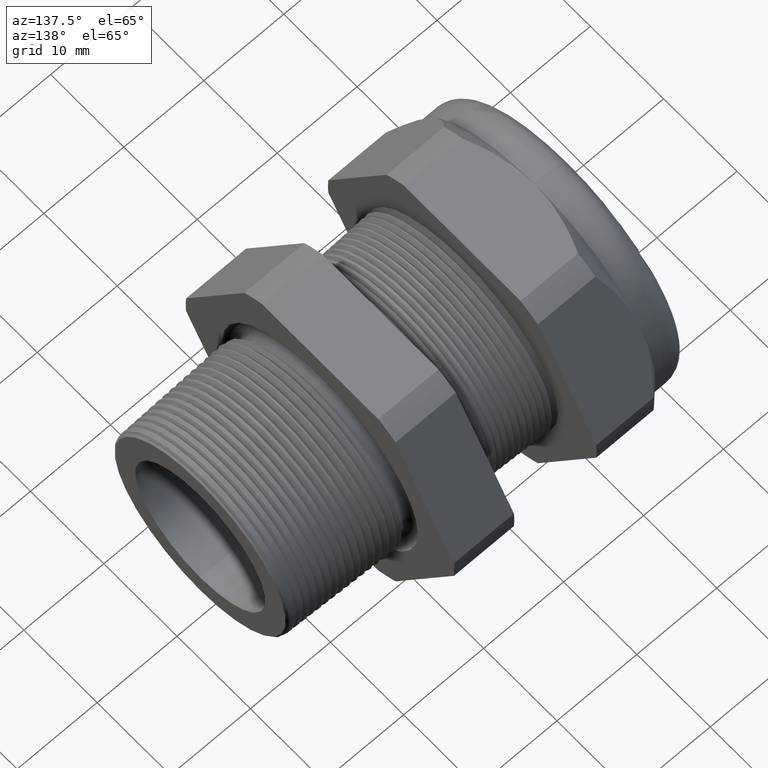
[diagram: clean part render]
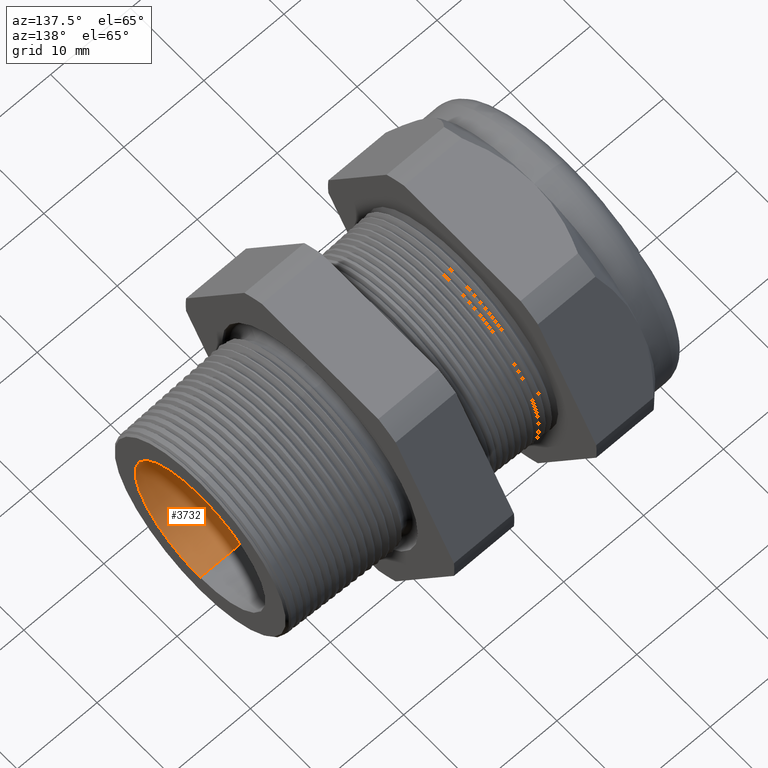
[diagram: same view with one face highlighted and labeled with its STEP entity id]
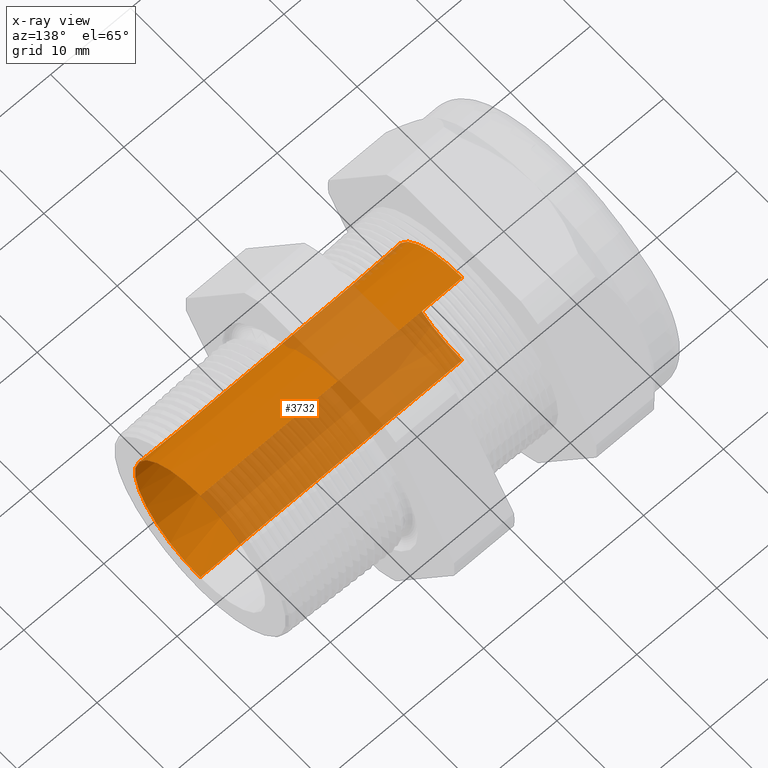
[diagram: x-ray of the same camera — body ghosted, the highlighted face saturated]
A machine part, auxiliary view. The second image highlights one B-rep face of the part: STEP entity #3732.
The next image is the same camera in x-ray: the body ghosted, the highlighted face saturated — about 52% of this face is hidden behind the body in this view.
In plain terms, the highlighted conical surface has half-angle 0.225 deg.
Its self-contained STEP definition (entity closure, byte-faithful):
#3680 = VERTEX_POINT ( 'NONE', #4753 ) ;
#3684 = EDGE_CURVE ( 'NONE', #3686, #3680, #4810, .T. ) ;
#3686 = VERTEX_POINT ( 'NONE', #4800 ) ;
#3719 = EDGE_LOOP ( 'NONE', ( #3730, #3731, #3725, #3724 ) ) ;
#3723 = EDGE_CURVE ( 'NONE', #3727, #3686, #4878, .T. ) ;
#3724 = ORIENTED_EDGE ( 'NONE', *, *, #3723, .F. ) ;
#3725 = ORIENTED_EDGE ( 'NONE', *, *, #3684, .F. ) ;
#3726 = VERTEX_POINT ( 'NONE', #4874 ) ;
#3727 = VERTEX_POINT ( 'NONE', #4873 ) ;
#3728 = EDGE_CURVE ( 'NONE', #3726, #3680, #4872, .T. ) ;
#3729 = EDGE_CURVE ( 'NONE', #3727, #3726, #4868, .T. ) ;
#3730 = ORIENTED_EDGE ( 'NONE', *, *, #3729, .T. ) ;
#3731 = ORIENTED_EDGE ( 'NONE', *, *, #3728, .T. ) ;
#3732 = ADVANCED_FACE ( 'NONE', ( #4863 ), #4862, .F. ) ;
#4753 = CARTESIAN_POINT ( 'NONE',  ( -1.010314960629921100, 4.347496136973102900E-017, -0.3549999999999999300 ) ) ;
#4800 = CARTESIAN_POINT ( 'NONE',  ( -1.010314960629921100, 0.0000000000000000000, 0.3549999999999999300 ) ) ;
#4806 = DIRECTION ( 'NONE',  ( 0.0000000000000000000, 0.0000000000000000000, -1.000000000000000000 ) ) ;
#4807 = DIRECTION ( 'NONE',  ( 1.000000000000000000, 0.0000000000000000000, 0.0000000000000000000 ) ) ;
#4808 = CARTESIAN_POINT ( 'NONE',  ( -1.010314960629921100, 0.0000000000000000000, 0.0000000000000000000 ) ) ;
#4809 = AXIS2_PLACEMENT_3D ( 'NONE', #4808, #4807, #4806 ) ;
#4810 = CIRCLE ( 'NONE', #4809, 0.3549999999999999300 ) ;
#4858 = DIRECTION ( 'NONE',  ( 0.0000000000000000000, 0.0000000000000000000, 1.000000000000000000 ) ) ;
#4859 = DIRECTION ( 'NONE',  ( -1.000000000000000000, 0.0000000000000000000, 0.0000000000000000000 ) ) ;
#4860 = CARTESIAN_POINT ( 'NONE',  ( -1.010314960629921100, 0.0000000000000000000, 0.0000000000000000000 ) ) ;
#4861 = AXIS2_PLACEMENT_3D ( 'NONE', #4860, #4859, #4858 ) ;
#4862 = CONICAL_SURFACE ( 'NONE', #4861, 0.3549999999999999300, 0.003920566332203210600 ) ;
#4863 = FACE_OUTER_BOUND ( 'NONE', #3719, .T. ) ;
#4864 = DIRECTION ( 'NONE',  ( 0.0000000000000000000, 0.0000000000000000000, -1.000000000000000000 ) ) ;
#4865 = DIRECTION ( 'NONE',  ( 1.000000000000000000, 0.0000000000000000000, 0.0000000000000000000 ) ) ;
#4866 = CARTESIAN_POINT ( 'NONE',  ( 0.2800000000000000300, 0.0000000000000000000, 0.0000000000000000000 ) ) ;
#4867 = AXIS2_PLACEMENT_3D ( 'NONE', #4866, #4865, #4864 ) ;
#4868 = CIRCLE ( 'NONE', #4867, 0.3499412086880983000 ) ;
#4869 = DIRECTION ( 'NONE',  ( -0.9999923145896616500, 4.801296709561271600E-019, -0.003920556288477723900 ) ) ;
#4870 = VECTOR ( 'NONE', #4869, 39.37007874015748100 ) ;
#4871 = CARTESIAN_POINT ( 'NONE',  ( -1.010314960629921100, 4.347496136973102900E-017, -0.3549999999999999300 ) ) ;
#4872 = LINE ( 'NONE', #4871, #4870 ) ;
#4873 = CARTESIAN_POINT ( 'NONE',  ( 0.2800000000000000300, 0.0000000000000000000, 0.3499412086880983000 ) ) ;
#4874 = CARTESIAN_POINT ( 'NONE',  ( 0.2800000000000000300, 4.316519974034729800E-017, -0.3499412086880983000 ) ) ;
#4875 = DIRECTION ( 'NONE',  ( -0.9999923145896616500, 0.0000000000000000000, 0.003920556288477723900 ) ) ;
#4876 = VECTOR ( 'NONE', #4875, 39.37007874015748100 ) ;
#4877 = CARTESIAN_POINT ( 'NONE',  ( -1.010314960629921100, 0.0000000000000000000, 0.3549999999999999300 ) ) ;
#4878 = LINE ( 'NONE', #4877, #4876 ) ;